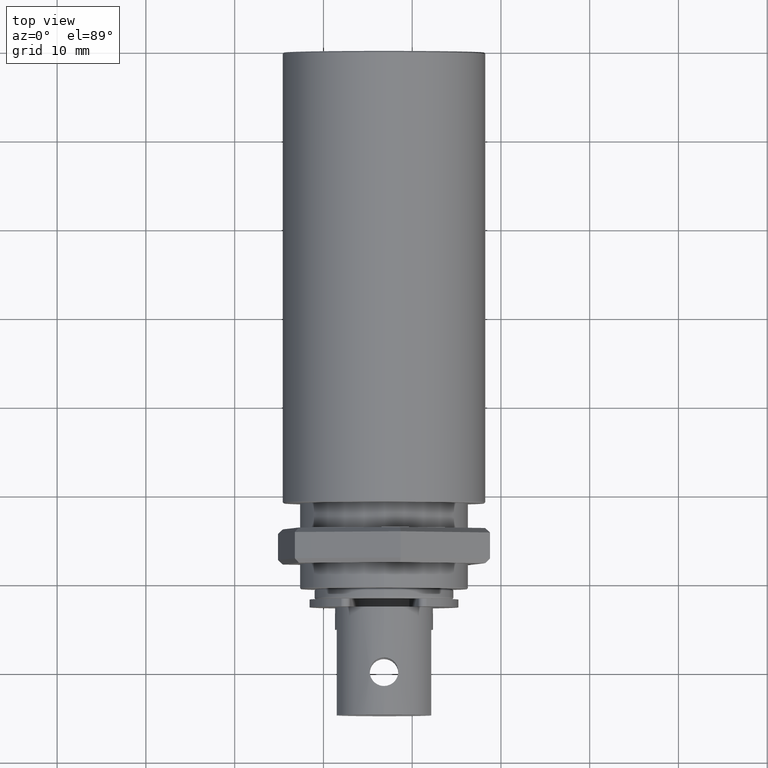
[diagram: clean part render]
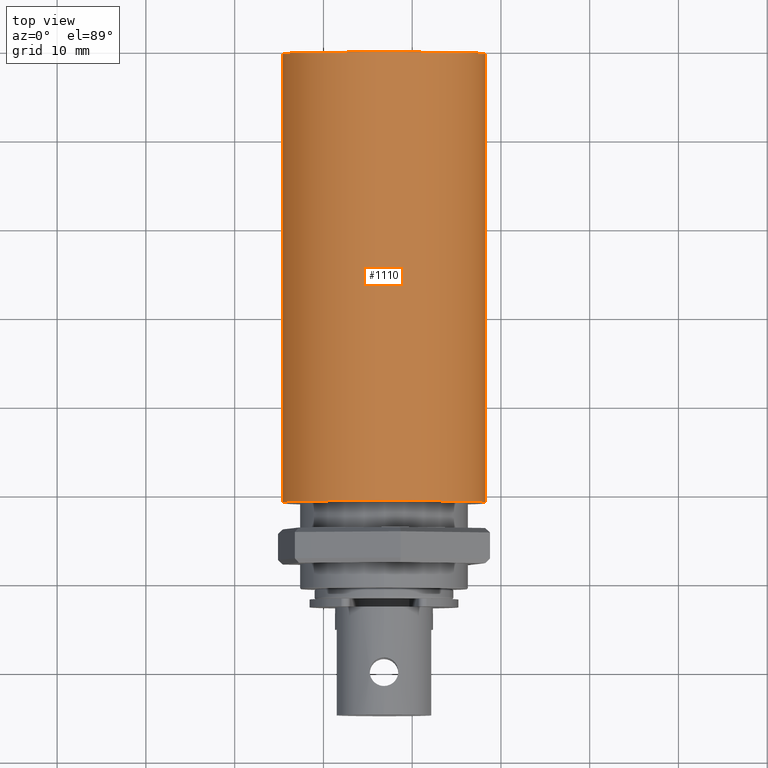
[diagram: same view with one face highlighted and labeled with its STEP entity id]
A machine part, top view. The second image highlights one B-rep face of the part: STEP entity #1110.
In plain terms, the highlighted cylindrical surface (bore or boss wall) has radius 11.43 mm, axis along (-0, -1, 0).
Its self-contained STEP definition (entity closure, byte-faithful):
#102=CIRCLE('',#1292,0.01143);
#103=CIRCLE('',#1293,0.01143);
#133=CYLINDRICAL_SURFACE('',#1291,0.01143);
#387=ORIENTED_EDGE('',*,*,#534,.T.);
#388=ORIENTED_EDGE('',*,*,#535,.T.);
#534=EDGE_CURVE('',#631,#631,#102,.T.);
#535=EDGE_CURVE('',#632,#632,#103,.F.);
#631=VERTEX_POINT('',#1957);
#632=VERTEX_POINT('',#1959);
#883=EDGE_LOOP('',(#387));
#884=EDGE_LOOP('',(#388));
#986=FACE_BOUND('',#883,.T.);
#987=FACE_BOUND('',#884,.T.);
#1110=ADVANCED_FACE('',(#986,#987),#133,.T.);
#1291=AXIS2_PLACEMENT_3D('',#1955,#1611,#1612);
#1292=AXIS2_PLACEMENT_3D('',#1956,#1613,#1614);
#1293=AXIS2_PLACEMENT_3D('',#1958,#1615,#1616);
#1611=DIRECTION('',(0.,0.,-1.));
#1612=DIRECTION('',(-1.,0.,0.));
#1613=DIRECTION('',(0.,0.,1.));
#1614=DIRECTION('',(1.,0.,0.));
#1615=DIRECTION('',(0.,0.,1.));
#1616=DIRECTION('',(1.,0.,0.));
#1955=CARTESIAN_POINT('',(0.,0.,0.0208083543884633));
#1956=CARTESIAN_POINT('',(0.,0.,0.009779));
#1957=CARTESIAN_POINT('',(0.01143,0.,0.009779));
#1958=CARTESIAN_POINT('',(0.,0.,0.060325));
#1959=CARTESIAN_POINT('',(0.01143,0.,0.060325));